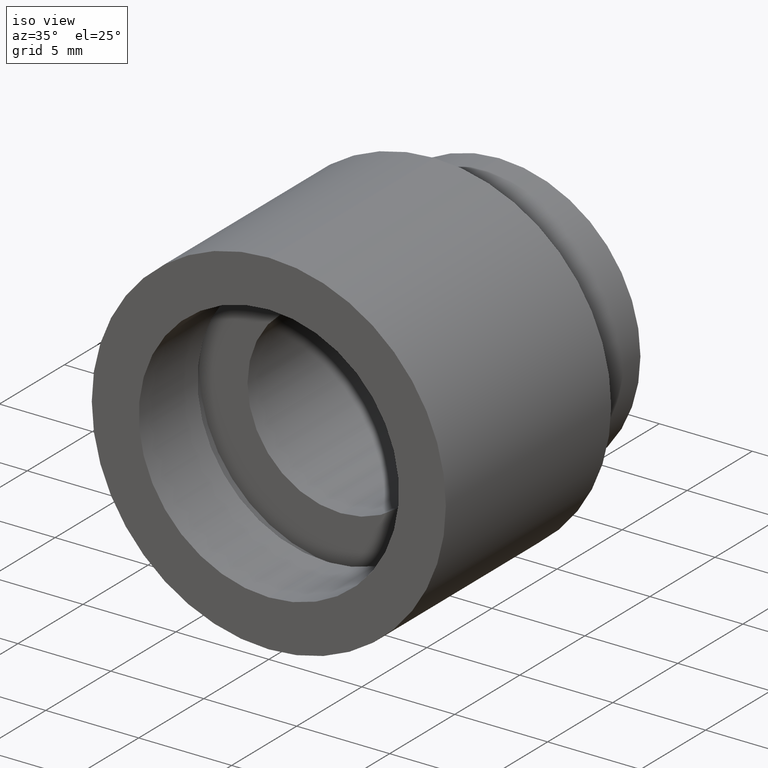
[diagram: clean part render]
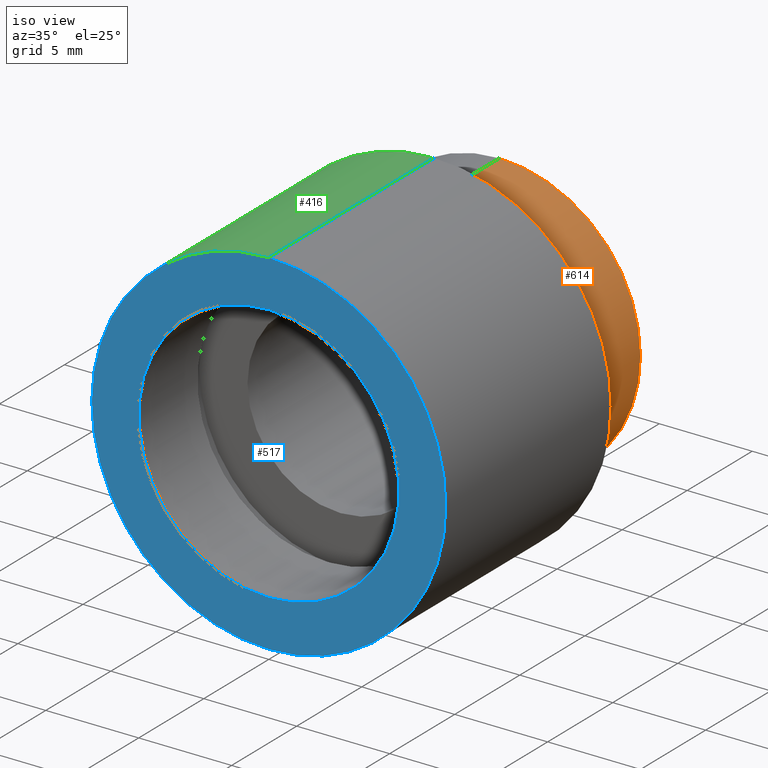
[diagram: same view with three faces highlighted in distinct colors, each labeled with its STEP entity id]
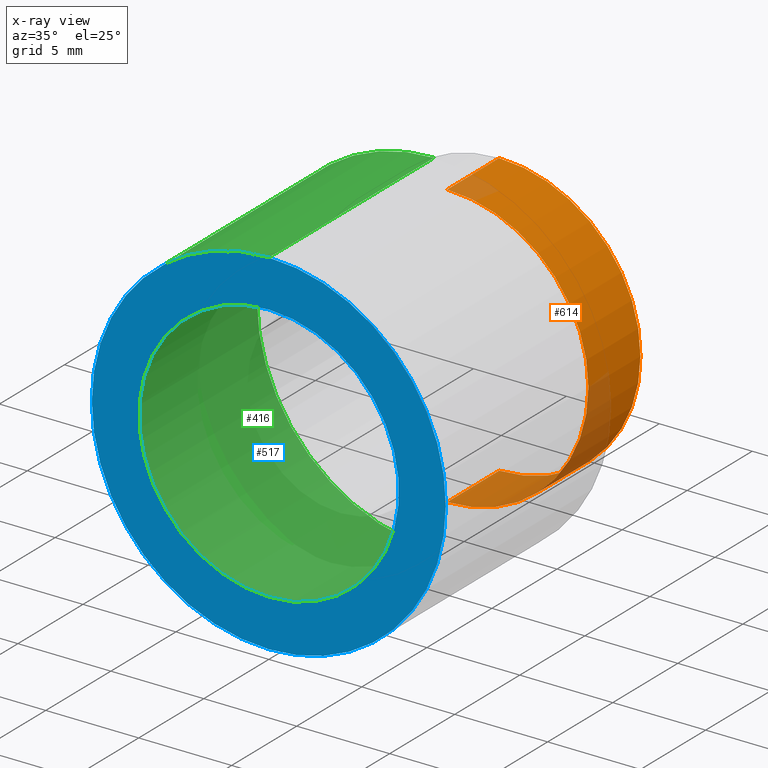
[diagram: x-ray of the same camera — body ghosted, the three highlighted faces saturated]
A machine part, iso view with three faces highlighted in distinct colors.
The next image is the same camera in x-ray (body ghosted, the three faces saturated) — at least one of them is partly hidden behind the body in this view.
Their STEP definitions:

[orange] entity #614 — the highlighted cylindrical surface (partial cylindrical patch) has radius 7.6 mm, axis along (-0, 1, -0).
#5 = AXIS2_PLACEMENT_3D ( 'NONE', #364, #512, #77 ) ;
#15 = DIRECTION ( 'NONE',  ( -0.0000000000000000000, 1.000000000000000000, -0.0000000000000000000 ) ) ;
#25 = VERTEX_POINT ( 'NONE', #232 ) ;
#41 = ORIENTED_EDGE ( 'NONE', *, *, #433, .F. ) ;
#48 = VERTEX_POINT ( 'NONE', #541 ) ;
#50 = DIRECTION ( 'NONE',  ( -0.0000000000000000000, 1.000000000000000000, -0.0000000000000000000 ) ) ;
#53 = DIRECTION ( 'NONE',  ( -0.0000000000000000000, 1.000000000000000000, -0.0000000000000000000 ) ) ;
#77 = DIRECTION ( 'NONE',  ( 0.0000000000000000000, 0.0000000000000000000, 1.000000000000000000 ) ) ;
#93 = ORIENTED_EDGE ( 'NONE', *, *, #588, .F. ) ;
#97 = LINE ( 'NONE', #437, #445 ) ;
#99 = CIRCLE ( 'NONE', #5, 7.600000000000016500 ) ;
#223 = AXIS2_PLACEMENT_3D ( 'NONE', #491, #237, #492 ) ;
#225 = CIRCLE ( 'NONE', #223, 7.600000000000016500 ) ;
#232 = CARTESIAN_POINT ( 'NONE',  ( 0.0000000000000000000, 13.69999999999999000, 7.600000000000016500 ) ) ;
#237 = DIRECTION ( 'NONE',  ( -0.0000000000000000000, 1.000000000000000000, -0.0000000000000000000 ) ) ;
#239 = CARTESIAN_POINT ( 'NONE',  ( 9.307315673519903200E-016, 161.3761669434274500, -7.600000000000016500 ) ) ;
#248 = LINE ( 'NONE', #239, #609 ) ;
#261 = EDGE_CURVE ( 'NONE', #25, #48, #99, .T. ) ;
#316 = CARTESIAN_POINT ( 'NONE',  ( 9.307315673519903200E-016, 17.69999999999996700, -7.600000000000016500 ) ) ;
#362 = VERTEX_POINT ( 'NONE', #316 ) ;
#364 = CARTESIAN_POINT ( 'NONE',  ( 0.0000000000000000000, 13.69999999999999000, 0.0000000000000000000 ) ) ;
#421 = ORIENTED_EDGE ( 'NONE', *, *, #261, .T. ) ;
#433 = EDGE_CURVE ( 'NONE', #25, #580, #97, .T. ) ;
#437 = CARTESIAN_POINT ( 'NONE',  ( 0.0000000000000000000, 161.3761669434274500, 7.600000000000016500 ) ) ;
#445 = VECTOR ( 'NONE', #50, 1000.000000000000000 ) ;
#464 = CYLINDRICAL_SURFACE ( 'NONE', #584, 7.600000000000016500 ) ;
#491 = CARTESIAN_POINT ( 'NONE',  ( 0.0000000000000000000, 17.69999999999996700, 0.0000000000000000000 ) ) ;
#492 = DIRECTION ( 'NONE',  ( 0.0000000000000000000, 0.0000000000000000000, 1.000000000000000000 ) ) ;
#493 = DIRECTION ( 'NONE',  ( 0.0000000000000000000, 0.0000000000000000000, 1.000000000000000000 ) ) ;
#512 = DIRECTION ( 'NONE',  ( -0.0000000000000000000, 1.000000000000000000, -0.0000000000000000000 ) ) ;
#534 = FACE_OUTER_BOUND ( 'NONE', #554, .T. ) ;
#541 = CARTESIAN_POINT ( 'NONE',  ( 9.307315673519903200E-016, 13.69999999999999000, -7.600000000000016500 ) ) ;
#554 = EDGE_LOOP ( 'NONE', ( #421, #581, #93, #41 ) ) ;
#580 = VERTEX_POINT ( 'NONE', #587 ) ;
#581 = ORIENTED_EDGE ( 'NONE', *, *, #623, .T. ) ;
#584 = AXIS2_PLACEMENT_3D ( 'NONE', #593, #53, #493 ) ;
#587 = CARTESIAN_POINT ( 'NONE',  ( 0.0000000000000000000, 17.69999999999996700, 7.600000000000016500 ) ) ;
#588 = EDGE_CURVE ( 'NONE', #580, #362, #225, .T. ) ;
#593 = CARTESIAN_POINT ( 'NONE',  ( 0.0000000000000000000, 161.3761669434274500, 0.0000000000000000000 ) ) ;
#609 = VECTOR ( 'NONE', #15, 1000.000000000000000 ) ;
#614 = ADVANCED_FACE ( 'NONE', ( #534 ), #464, .T. ) ;
#623 = EDGE_CURVE ( 'NONE', #48, #362, #248, .T. ) ;

[blue] entity #517 — the highlighted planar face has unit normal (-0, 1, 0).
#3 = ORIENTED_EDGE ( 'NONE', *, *, #262, .F. ) ;
#16 = EDGE_CURVE ( 'NONE', #354, #180, #234, .T. ) ;
#19 = DIRECTION ( 'NONE',  ( -0.0000000000000000000, 1.000000000000000000, -0.0000000000000000000 ) ) ;
#37 = AXIS2_PLACEMENT_3D ( 'NONE', #103, #145, #498 ) ;
#46 = CARTESIAN_POINT ( 'NONE',  ( 7.000000000000019500, -1.650046791174882700E-014, 0.0000000000000000000 ) ) ;
#56 = CARTESIAN_POINT ( 'NONE',  ( 0.0000000000000000000, -2.775557561562891400E-014, 0.0000000000000000000 ) ) ;
#76 = ORIENTED_EDGE ( 'NONE', *, *, #16, .T. ) ;
#88 = CARTESIAN_POINT ( 'NONE',  ( 1.166476076187856400E-015, -2.775557561562891400E-014, -9.525000000000019900 ) ) ;
#95 = DIRECTION ( 'NONE',  ( 0.0000000000000000000, 0.0000000000000000000, 1.000000000000000000 ) ) ;
#103 = CARTESIAN_POINT ( 'NONE',  ( 0.0000000000000000000, -2.775557561562891400E-014, 0.0000000000000000000 ) ) ;
#108 = FACE_BOUND ( 'NONE', #168, .T. ) ;
#142 = AXIS2_PLACEMENT_3D ( 'NONE', #551, #254, #605 ) ;
#145 = DIRECTION ( 'NONE',  ( -0.0000000000000000000, 1.000000000000000000, -0.0000000000000000000 ) ) ;
#168 = EDGE_LOOP ( 'NONE', ( #548, #76 ) ) ;
#176 = CIRCLE ( 'NONE', #142, 9.525000000000019900 ) ;
#180 = VERTEX_POINT ( 'NONE', #559 ) ;
#234 = CIRCLE ( 'NONE', #37, 7.000000000000019500 ) ;
#254 = DIRECTION ( 'NONE',  ( -0.0000000000000000000, 1.000000000000000000, -0.0000000000000000000 ) ) ;
#255 = AXIS2_PLACEMENT_3D ( 'NONE', #56, #19, #533 ) ;
#262 = EDGE_CURVE ( 'NONE', #330, #272, #176, .T. ) ;
#272 = VERTEX_POINT ( 'NONE', #88 ) ;
#314 = EDGE_LOOP ( 'NONE', ( #3, #467 ) ) ;
#330 = VERTEX_POINT ( 'NONE', #418 ) ;
#354 = VERTEX_POINT ( 'NONE', #567 ) ;
#367 = CIRCLE ( 'NONE', #604, 9.525000000000019900 ) ;
#381 = DIRECTION ( 'NONE',  ( -0.0000000000000000000, 1.000000000000000000, 0.0000000000000000000 ) ) ;
#418 = CARTESIAN_POINT ( 'NONE',  ( 0.0000000000000000000, -2.775557561562891400E-014, 9.525000000000019900 ) ) ;
#427 = AXIS2_PLACEMENT_3D ( 'NONE', #46, #381, #95 ) ;
#467 = ORIENTED_EDGE ( 'NONE', *, *, #471, .F. ) ;
#471 = EDGE_CURVE ( 'NONE', #272, #330, #367, .T. ) ;
#484 = DIRECTION ( 'NONE',  ( 0.0000000000000000000, 0.0000000000000000000, 1.000000000000000000 ) ) ;
#498 = DIRECTION ( 'NONE',  ( 0.0000000000000000000, 0.0000000000000000000, 1.000000000000000000 ) ) ;
#517 = ADVANCED_FACE ( 'NONE', ( #569, #108 ), #579, .F. ) ;
#526 = DIRECTION ( 'NONE',  ( -0.0000000000000000000, 1.000000000000000000, -0.0000000000000000000 ) ) ;
#533 = DIRECTION ( 'NONE',  ( 0.0000000000000000000, 0.0000000000000000000, 1.000000000000000000 ) ) ;
#548 = ORIENTED_EDGE ( 'NONE', *, *, #597, .T. ) ;
#551 = CARTESIAN_POINT ( 'NONE',  ( 0.0000000000000000000, -2.775557561562891400E-014, 0.0000000000000000000 ) ) ;
#559 = CARTESIAN_POINT ( 'NONE',  ( 0.0000000000000000000, -2.775557561562891400E-014, 7.000000000000019500 ) ) ;
#567 = CARTESIAN_POINT ( 'NONE',  ( 8.572527594031495900E-016, -2.775557561562891400E-014, -7.000000000000019500 ) ) ;
#569 = FACE_OUTER_BOUND ( 'NONE', #314, .T. ) ;
#579 = PLANE ( 'NONE',  #427 ) ;
#583 = CARTESIAN_POINT ( 'NONE',  ( 0.0000000000000000000, -2.775557561562891400E-014, 0.0000000000000000000 ) ) ;
#592 = CIRCLE ( 'NONE', #255, 7.000000000000019500 ) ;
#597 = EDGE_CURVE ( 'NONE', #180, #354, #592, .T. ) ;
#604 = AXIS2_PLACEMENT_3D ( 'NONE', #583, #526, #484 ) ;
#605 = DIRECTION ( 'NONE',  ( 0.0000000000000000000, 0.0000000000000000000, 1.000000000000000000 ) ) ;

[green] entity #416 — the highlighted cylindrical surface (partial cylindrical patch) has radius 9.525 mm, axis along (-0, 1, -0).
#82 = CARTESIAN_POINT ( 'NONE',  ( 0.0000000000000000000, 12.69999999999998900, 9.525000000000019900 ) ) ;
#88 = CARTESIAN_POINT ( 'NONE',  ( 1.166476076187856400E-015, -2.775557561562891400E-014, -9.525000000000019900 ) ) ;
#96 = EDGE_CURVE ( 'NONE', #468, #282, #378, .T. ) ;
#101 = CARTESIAN_POINT ( 'NONE',  ( 1.166476076187856400E-015, 161.3761669434274500, -9.525000000000019900 ) ) ;
#111 = DIRECTION ( 'NONE',  ( -0.0000000000000000000, 1.000000000000000000, -0.0000000000000000000 ) ) ;
#112 = AXIS2_PLACEMENT_3D ( 'NONE', #455, #111, #119 ) ;
#119 = DIRECTION ( 'NONE',  ( 0.0000000000000000000, 0.0000000000000000000, 1.000000000000000000 ) ) ;
#120 = ORIENTED_EDGE ( 'NONE', *, *, #550, .F. ) ;
#141 = ORIENTED_EDGE ( 'NONE', *, *, #471, .T. ) ;
#144 = EDGE_CURVE ( 'NONE', #330, #282, #321, .T. ) ;
#147 = DIRECTION ( 'NONE',  ( -0.0000000000000000000, 1.000000000000000000, -0.0000000000000000000 ) ) ;
#154 = DIRECTION ( 'NONE',  ( -0.0000000000000000000, 1.000000000000000000, -0.0000000000000000000 ) ) ;
#181 = CARTESIAN_POINT ( 'NONE',  ( 0.0000000000000000000, 161.3761669434274500, 0.0000000000000000000 ) ) ;
#184 = EDGE_LOOP ( 'NONE', ( #120, #141, #435, #503 ) ) ;
#272 = VERTEX_POINT ( 'NONE', #88 ) ;
#275 = DIRECTION ( 'NONE',  ( 0.0000000000000000000, 0.0000000000000000000, 1.000000000000000000 ) ) ;
#282 = VERTEX_POINT ( 'NONE', #82 ) ;
#306 = CYLINDRICAL_SURFACE ( 'NONE', #486, 9.525000000000019900 ) ;
#321 = LINE ( 'NONE', #453, #329 ) ;
#329 = VECTOR ( 'NONE', #154, 1000.000000000000000 ) ;
#330 = VERTEX_POINT ( 'NONE', #418 ) ;
#367 = CIRCLE ( 'NONE', #604, 9.525000000000019900 ) ;
#378 = CIRCLE ( 'NONE', #112, 9.525000000000019900 ) ;
#383 = FACE_OUTER_BOUND ( 'NONE', #184, .T. ) ;
#384 = CARTESIAN_POINT ( 'NONE',  ( 1.166476076187856400E-015, 12.69999999999998900, -9.525000000000019900 ) ) ;
#412 = LINE ( 'NONE', #101, #429 ) ;
#416 = ADVANCED_FACE ( 'NONE', ( #383 ), #306, .T. ) ;
#418 = CARTESIAN_POINT ( 'NONE',  ( 0.0000000000000000000, -2.775557561562891400E-014, 9.525000000000019900 ) ) ;
#429 = VECTOR ( 'NONE', #147, 1000.000000000000000 ) ;
#435 = ORIENTED_EDGE ( 'NONE', *, *, #144, .T. ) ;
#453 = CARTESIAN_POINT ( 'NONE',  ( 0.0000000000000000000, 161.3761669434274500, 9.525000000000019900 ) ) ;
#455 = CARTESIAN_POINT ( 'NONE',  ( 0.0000000000000000000, 12.69999999999998900, 0.0000000000000000000 ) ) ;
#468 = VERTEX_POINT ( 'NONE', #384 ) ;
#471 = EDGE_CURVE ( 'NONE', #272, #330, #367, .T. ) ;
#484 = DIRECTION ( 'NONE',  ( 0.0000000000000000000, 0.0000000000000000000, 1.000000000000000000 ) ) ;
#486 = AXIS2_PLACEMENT_3D ( 'NONE', #181, #585, #275 ) ;
#503 = ORIENTED_EDGE ( 'NONE', *, *, #96, .F. ) ;
#526 = DIRECTION ( 'NONE',  ( -0.0000000000000000000, 1.000000000000000000, -0.0000000000000000000 ) ) ;
#550 = EDGE_CURVE ( 'NONE', #272, #468, #412, .T. ) ;
#583 = CARTESIAN_POINT ( 'NONE',  ( 0.0000000000000000000, -2.775557561562891400E-014, 0.0000000000000000000 ) ) ;
#585 = DIRECTION ( 'NONE',  ( -0.0000000000000000000, 1.000000000000000000, -0.0000000000000000000 ) ) ;
#604 = AXIS2_PLACEMENT_3D ( 'NONE', #583, #526, #484 ) ;